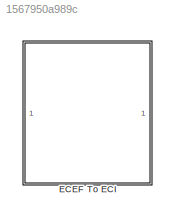
MODEL slx_1567950a989c
KIND library
CONFIG AbsTol = auto
CONFIG EnableMultiTasking = off
CONFIG FixedStep = auto
CONFIG MaxStep = auto
CONFIG MinStep = auto
CONFIG RelTol = 1e-3
CONFIG SampleTimeConstraint = Unconstrained
CONFIG SolverName = VariableStepAuto
CONFIG StartTime = 0.0
CONFIG StopTime = 10.0
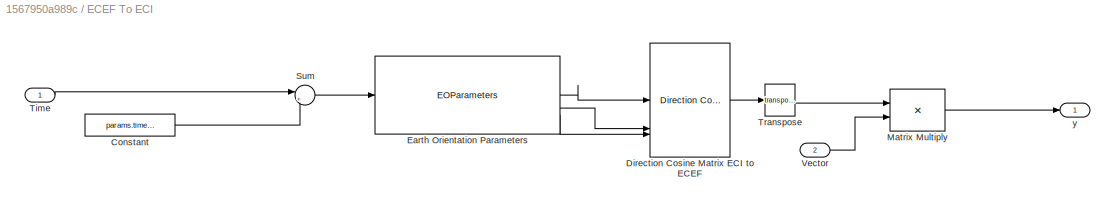
BLOCK [SubSystem] ECEF To ECI
BLOCK [Constant] ECEF To ECI/Constant
  Value = params.time.startTime
BLOCK [Reference] ECEF To ECI/Direction Cosine Matrix ECI to ECEF  REF=aerolibtransform2/Direction Cosine Matrix
ECI to ECEF
  AttributesFormatString = %<red>
  SourceBlock = aerolibtransform2/Direction Cosine Matrix\nECI to ECEF
  SourceType = DCMECItoECEF
BLOCK [EOParameters] ECEF To ECI/Earth Orientation Parameters
BLOCK [Product] ECEF To ECI/Matrix Multiply
  Multiplication = Matrix(*)
BLOCK [Sum] ECEF To ECI/Sum
  Inputs = |++
BLOCK [Inport] ECEF To ECI/Time
BLOCK [Math] ECEF To ECI/Transpose
  Operator = transpose
BLOCK [Inport] ECEF To ECI/Vector
  Port = 2
BLOCK [Outport] ECEF To ECI/y
LINE ECEF To ECI/Constant:1 -> ECEF To ECI/Sum:2
LINE ECEF To ECI/Direction Cosine Matrix ECI to ECEF:1 -> ECEF To ECI/Transpose:1
LINE ECEF To ECI/Earth Orientation Parameters:1 -> ECEF To ECI/Direction Cosine Matrix ECI to ECEF:1
LINE ECEF To ECI/Earth Orientation Parameters:2 -> ECEF To ECI/Direction Cosine Matrix ECI to ECEF:3
LINE ECEF To ECI/Earth Orientation Parameters:3 -> ECEF To ECI/Direction Cosine Matrix ECI to ECEF:4
LINE ECEF To ECI/Matrix Multiply:1 -> ECEF To ECI/y:1
LINE ECEF To ECI/Sum:1 -> ECEF To ECI/Earth Orientation Parameters:1
LINE ECEF To ECI/Time:1 -> ECEF To ECI/Sum:1
LINE ECEF To ECI/Transpose:1 -> ECEF To ECI/Matrix Multiply:1
LINE ECEF To ECI/Vector:1 -> ECEF To ECI/Matrix Multiply:2
